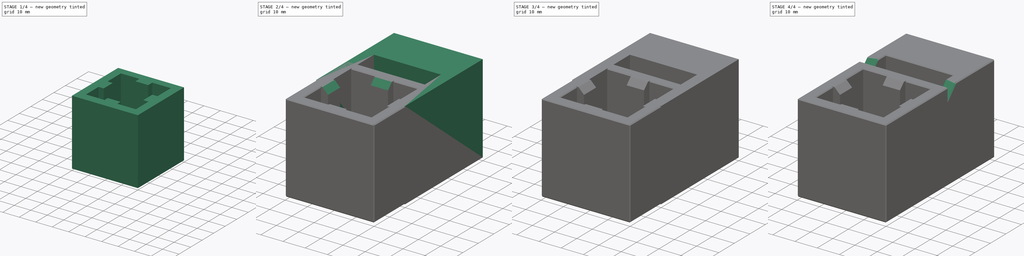
[diagram: build sequence overview — one tinted view per stage of 4, left to right]
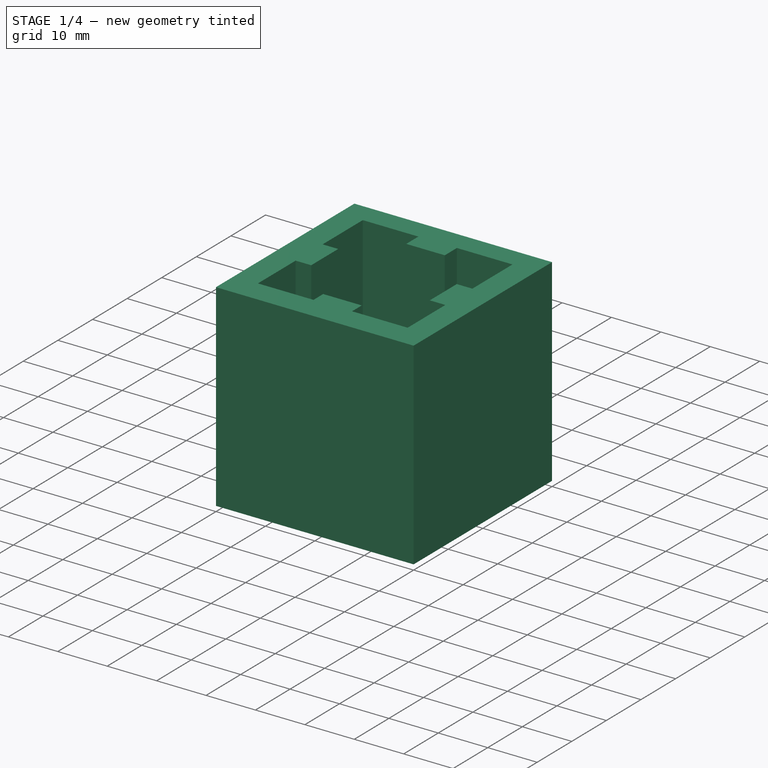
[diagram: stage 1 of 4 — iso view after this stage's code; geometry added in this stage tinted green]
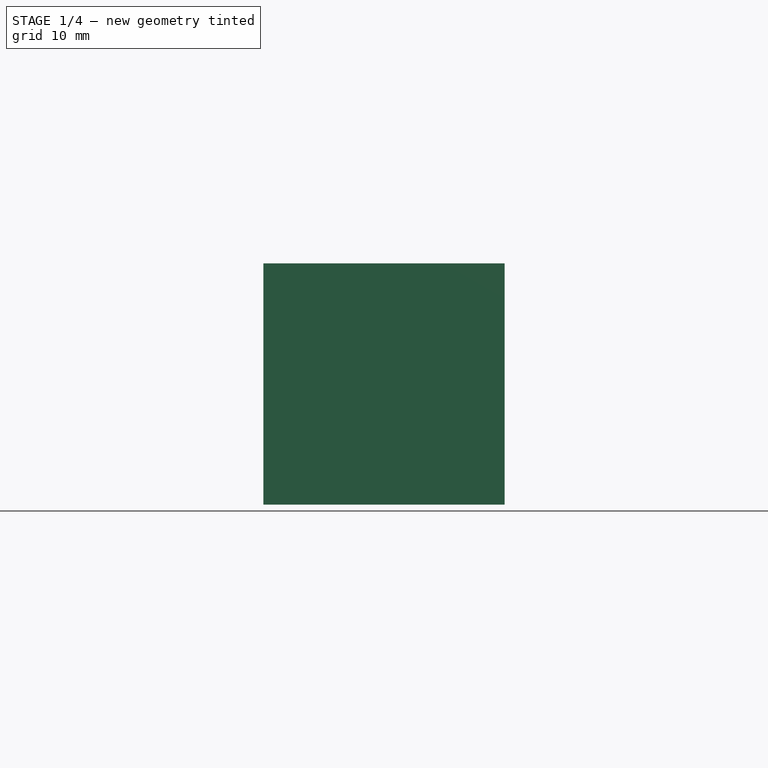
[diagram: stage 1 of 4 — front view after this stage's code; geometry added in this stage tinted green]
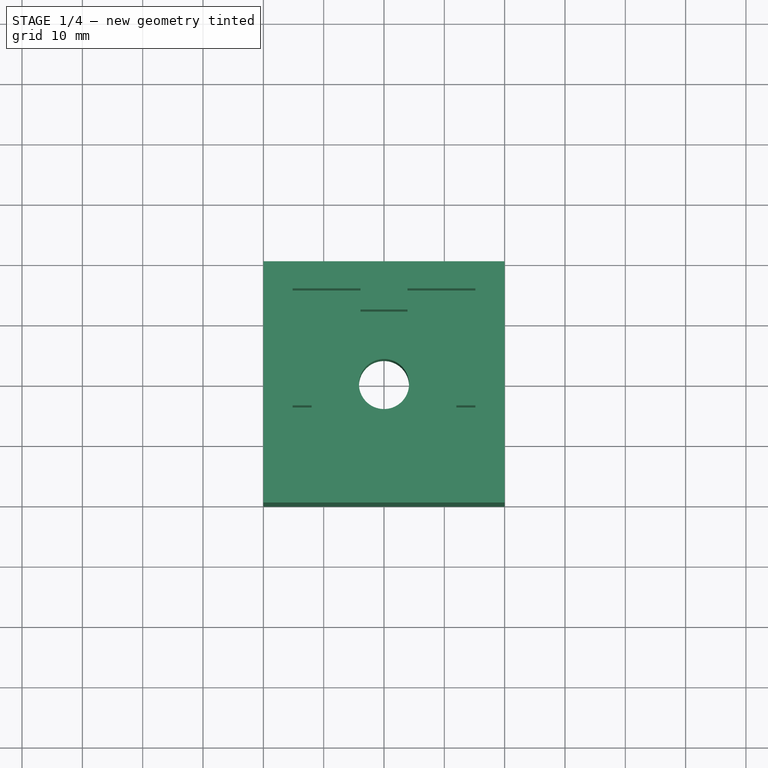
[diagram: stage 1 of 4 — top view after this stage's code; geometry added in this stage tinted green]
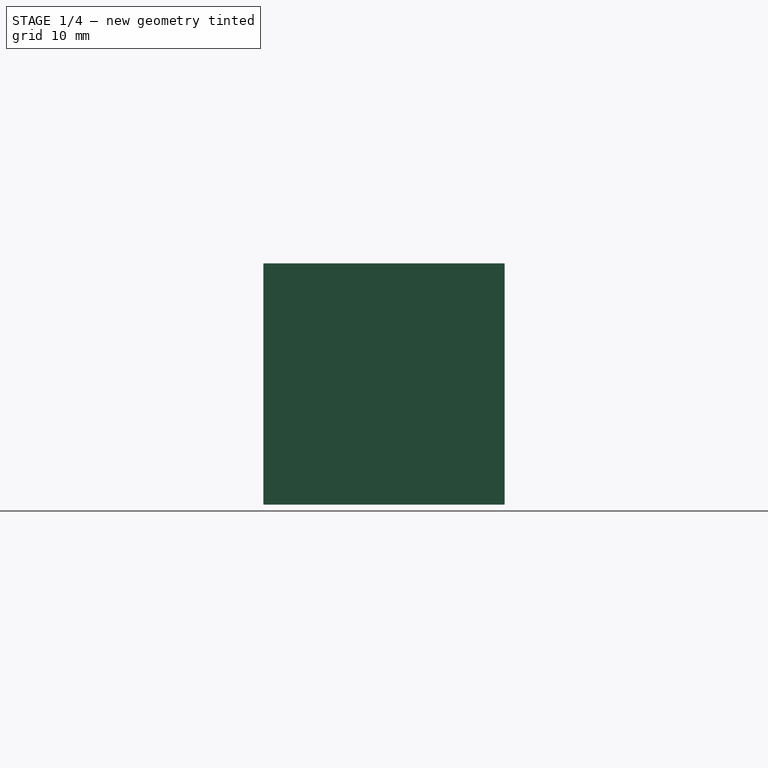
[diagram: stage 1 of 4 — right view after this stage's code; geometry added in this stage tinted green]
FCSTD DOCUMENT  (FreeCAD 0.19R24291 (Git))
Label: drilling-jig
License: Other
LicenseURL: GPL3
objects: Sketcher::SketchObject×8, PartDesign::Pocket×5, PartDesign::Chamfer×4, PartDesign::Pad×3, PartDesign::Body×2
note: 34 computed .brp shape members not serialized (recipe doc carries the construction recipe); baked Part::Feature solids carry a one-line shape summary decoded from their .brp

FEATURE [PartDesign::Body] Body
  Group = -> [Sketch,Pad,Sketch001,Pocket,Sketch002,Pocket001,Sketch003,Pocket002,Chamfer,Chamfer001,Sketch004,Pocket003]
  Origin = -> Origin
  Tip = -> Pocket003
FEATURE [Sketcher::SketchObject] Sketch005
  FullyConstrained = true
  MapMode = 5
  Support = -> [XY_Plane001]
  sketch-geometry (5):
    g0: LineSegment StartX=-20 StartY=20 StartZ=0 EndX=20 EndY=20 EndZ=0
    g1: LineSegment StartX=20 StartY=20 StartZ=0 EndX=20 EndY=-20 EndZ=0
    g2: LineSegment StartX=20 StartY=-20 StartZ=0 EndX=-20 EndY=-20 EndZ=0
    g3: LineSegment StartX=-20 StartY=-20 StartZ=0 EndX=-20 EndY=20 EndZ=0
    g4: Circle CenterX=0 CenterY=0 CenterZ=0 NormalX=0 NormalY=0 NormalZ=1 AngleXU=0 Radius=4.15
  constraints (14):
    c: Coincident(g0,g1)
    c: Coincident(g1,g2)
    c: Coincident(g2,g3)
    c: Coincident(g3,g0)
    c: Horizontal(g0)
    c: Horizontal(g2)
    c: Vertical(g1)
    c: Vertical(g3)
    c: DistanceX(g0,g0) = 40
    c: DistanceY(g1,g1) = 40
    c: DistanceY(g-1,g0) = 20
    c: DistanceX(g0,g-1) = 20
    c: Coincident(g4,g-1)
    c: Radius(g4) = 4.15
FEATURE [PartDesign::Pad] Pad001
  Direction = (1,1,1)
  Length = 40
  Length2 = 100
  Profile = -> Sketch005
  Type = 0
FEATURE [Sketcher::SketchObject] Sketch006
  FullyConstrained = true
  MapMode = 5
  Placement = pos=(0,0,40) rot=(0,0,1;0rad)
  Support = -> [Pad001]
  sketch-geometry (4):
    g0: LineSegment StartX=-15.15 StartY=15.5 StartZ=0 EndX=15.15 EndY=15.5 EndZ=0
    g1: LineSegment StartX=15.15 StartY=15.5 StartZ=0 EndX=15.15 EndY=-14.8 EndZ=0
    g2: LineSegment StartX=15.15 StartY=-14.8 StartZ=0 EndX=-15.15 EndY=-14.8 EndZ=0
    g3: LineSegment StartX=-15.15 StartY=-14.8 StartZ=0 EndX=-15.15 EndY=15.5 EndZ=0
  constraints (12):
    c: Coincident(g0,g1)
    c: Coincident(g1,g2)
    c: Coincident(g2,g3)
    c: Coincident(g3,g0)
    c: Horizontal(g0)
    c: Horizontal(g2)
    c: Vertical(g1)
    c: Vertical(g3)
    c: DistanceX(g0,g0) = 30.3
    c: DistanceX(g0,g-1) = 15.15
    c: DistanceY(g1,g1) = 30.3
    c: DistanceY(g-1,g0) = 15.5
FEATURE [PartDesign::Pocket] Pocket004
  BaseFeature = -> Pad001
  Length = 20
  Length2 = 100
  Profile = -> Sketch006
  Type = 0
FEATURE [Sketcher::SketchObject] Sketch007
  FullyConstrained = true
  MapMode = 5
  Placement = pos=(0,0,40) rot=(0,0,1;0rad)
  Support = -> [Pocket004]
  sketch-geometry (16):
    g0: LineSegment StartX=-3.9 StartY=16 StartZ=0 EndX=3.9 EndY=16 EndZ=0
    g1: LineSegment StartX=3.9 StartY=16 StartZ=0 EndX=3.9 EndY=12 EndZ=0
    g2: LineSegment StartX=3.9 StartY=12 StartZ=0 EndX=-3.9 EndY=12 EndZ=0
    g3: LineSegment StartX=-3.9 StartY=12 StartZ=0 EndX=-3.9 EndY=16 EndZ=0
    g4: LineSegment StartX=-3.9 StartY=-12 StartZ=0 EndX=3.9 EndY=-12 EndZ=0
    g5: LineSegment StartX=3.9 StartY=-12 StartZ=0 EndX=3.9 EndY=-16 EndZ=0
    g6: LineSegment StartX=3.9 StartY=-16 StartZ=0 EndX=-3.9 EndY=-16 EndZ=0
    g7: LineSegment StartX=-3.9 StartY=-16 StartZ=0 EndX=-3.9 EndY=-12 EndZ=0
    g8: LineSegment StartX=-16 StartY=3.9 StartZ=0 EndX=-12 EndY=3.9 EndZ=0
    g9: LineSegment StartX=-12 StartY=3.9 StartZ=0 EndX=-12 EndY=-3.9 EndZ=0
    g10: LineSegment StartX=-12 StartY=-3.9 StartZ=0 EndX=-16 EndY=-3.9 EndZ=0
    g11: LineSegment StartX=-16 StartY=-3.9 StartZ=0 EndX=-16 EndY=3.9 EndZ=0
    g12: LineSegment StartX=12 StartY=3.9 StartZ=0 EndX=16 EndY=3.9 EndZ=0
    g13: LineSegment StartX=16 StartY=3.9 StartZ=0 EndX=16 EndY=-3.9 EndZ=0
    g14: LineSegment StartX=16 StartY=-3.9 StartZ=0 EndX=12 EndY=-3.9 EndZ=0
    g15: LineSegment StartX=12 StartY=-3.9 StartZ=0 EndX=12 EndY=3.9 EndZ=0
  constraints (48):
    c: Coincident(g0,g1)
    c: Coincident(g1,g2)
    c: Coincident(g2,g3)
    c: Coincident(g3,g0)
    c: Horizontal(g0)
    c: Horizontal(g2)
    c: Vertical(g1)
    c: Vertical(g3)
    c: Coincident(g4,g5)
    c: Coincident(g5,g6)
    c: Coincident(g6,g7)
    c: Coincident(g7,g4)
    c: Horizontal(g4)
    c: Horizontal(g6)
    c: Vertical(g5)
    c: Vertical(g7)
    c: Coincident(g8,g9)
    c: Coincident(g9,g10)
    c: Coincident(g10,g11)
    c: Coincident(g11,g8)
    c: Horizontal(g8)
    c: Horizontal(g10)
    c: Vertical(g9)
    c: Vertical(g11)
    c: Coincident(g12,g13)
    c: Coincident(g13,g14)
    c: Coincident(g14,g15)
    c: Coincident(g15,g12)
    c: Horizontal(g12)
    c: Horizontal(g14)
    c: Vertical(g13)
    c: Vertical(g15)
    c: DistanceY(g15,g15) = 7.8
    c: DistanceY(g9,g9) = 7.8
    c: DistanceX(g2,g2) = 7.8
    c: DistanceX(g4,g4) = 7.8
    c: DistanceX(g4,g-1) = 3.9
    c: DistanceX(g-1,g1) = 3.9
    c: DistanceY(g9,g-1) = 3.9
    c: DistanceY(g-1,g12) = 3.9
    c: DistanceY(g-1,g2) = 12
    c: DistanceY(g4,g-1) = 12
    c: DistanceX(g-1,g12) = 12
    c: DistanceX(g8,g-1) = 12
    c: DistanceX(g10,g10) = 4
    c: DistanceX(g12,g12) = 4
    c: DistanceY(g1,g1) = 4
    c: DistanceY(g5,g5) = 4
FEATURE [PartDesign::Pad] Pad002
  BaseFeature = -> Pocket004
  Direction = (1,1,1)
  Length = 20
  Length2 = 100
  Profile = -> Sketch007
  Reversed = true
  Type = 0
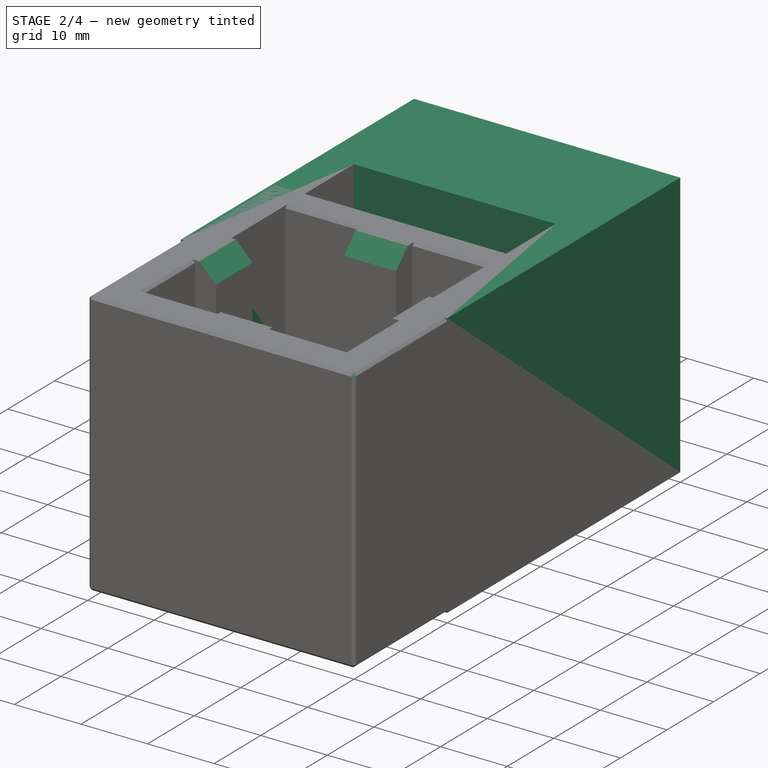
[diagram: stage 2 of 4 — iso view after this stage's code; geometry added in this stage tinted green]
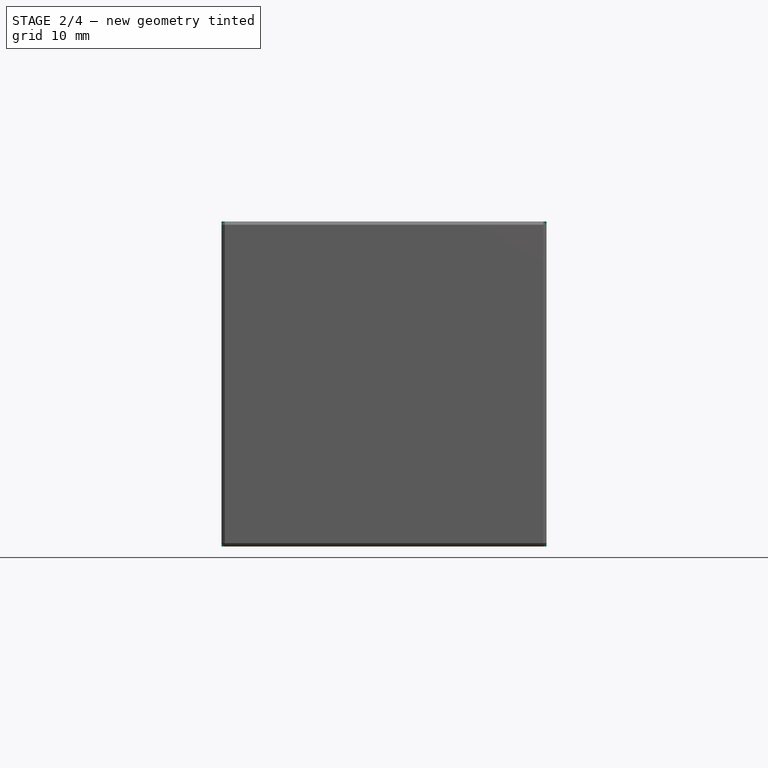
[diagram: stage 2 of 4 — front view after this stage's code; geometry added in this stage tinted green]
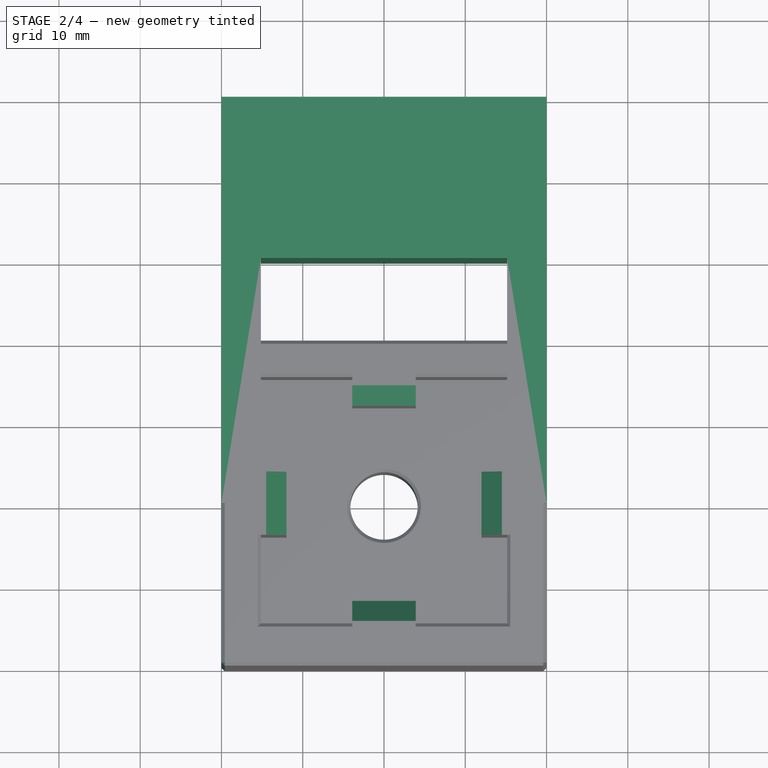
[diagram: stage 2 of 4 — top view after this stage's code; geometry added in this stage tinted green]
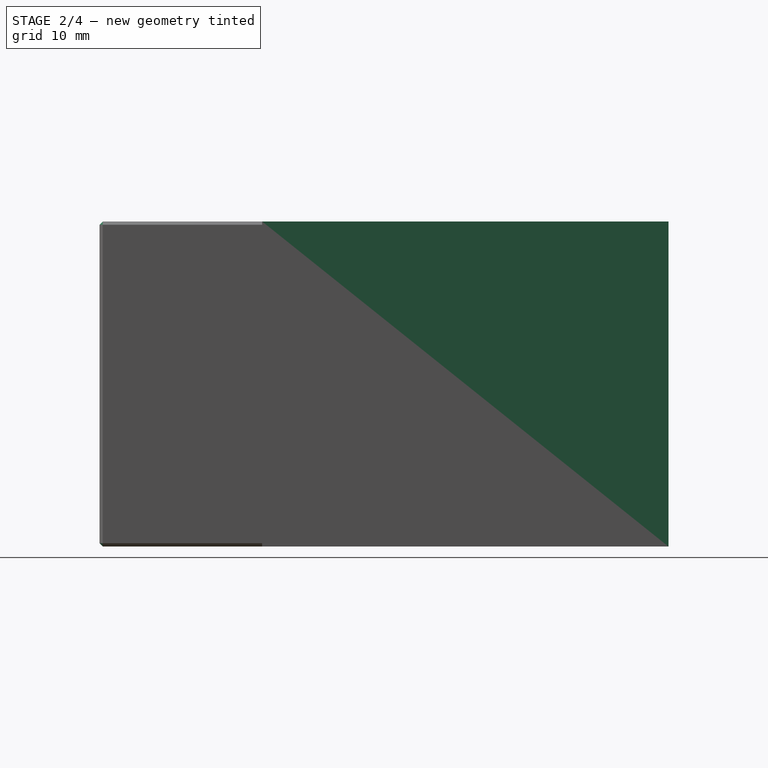
[diagram: stage 2 of 4 — right view after this stage's code; geometry added in this stage tinted green]
FEATURE [Sketcher::SketchObject] Sketch
  FullyConstrained = true
  MapMode = 5
  Support = -> [XY_Plane]
  sketch-geometry (8):
    g0: LineSegment StartX=-15.15 StartY=0 StartZ=0 EndX=-15.15 EndY=30.15 EndZ=0
    g1: LineSegment StartX=-15.15 StartY=30.15 StartZ=0 EndX=15.15 EndY=30.15 EndZ=0
    g2: LineSegment StartX=15.15 StartY=30.15 StartZ=0 EndX=15.15 EndY=0 EndZ=0
    g3: LineSegment StartX=15.15 StartY=0 StartZ=0 EndX=20 EndY=0 EndZ=0
    g4: LineSegment StartX=20 StartY=0 StartZ=0 EndX=20 EndY=50 EndZ=0
    g5: LineSegment StartX=20 StartY=50 StartZ=0 EndX=-20 EndY=50 EndZ=0
    g6: LineSegment StartX=-20 StartY=50 StartZ=0 EndX=-20 EndY=0 EndZ=0
    g7: LineSegment StartX=-20 StartY=0 StartZ=0 EndX=-15.15 EndY=0 EndZ=0
  constraints (24):
    c: PointOnObject(g0,g-1)
    c: Vertical(g0)
    c: Coincident(g0,g1)
    c: Horizontal(g1)
    c: Coincident(g1,g2)
    c: PointOnObject(g2,g-1)
    c: Vertical(g2)
    c: Coincident(g2,g3)
    c: PointOnObject(g3,g-1)
    c: Coincident(g3,g4)
    c: Vertical(g4)
    c: Coincident(g4,g5)
    c: Horizontal(g5)
    c: Coincident(g5,g6)
    c: PointOnObject(g6,g-1)
    c: Vertical(g6)
    c: Coincident(g6,g7)
    c: Coincident(g7,g0)
    c: DistanceX(g1,g1) = 30.3
    c: DistanceX(g5,g5) = 40
    c: DistanceX(g0,g-1) = 15.15
    c: DistanceX(g5,g-1) = 20
    c: DistanceY(g4,g4) = 50
    c: DistanceY(g2,g2) = 30.15
FEATURE [PartDesign::Pad] Pad
  Direction = (1,1,1)
  Length = 40
  Length2 = 100
  Profile = -> Sketch
  Type = 0
FEATURE [PartDesign::Chamfer] Chamfer002
  Angle = 45
  Base = -> Pad002 [Edge85,Edge89,Edge74,Edge79]
  BaseFeature = -> Pad002
  ChamferType = 0
  FlipDirection = false
  Size = 2.5
  Size2 = 1
  SupportTransform = false
FEATURE [PartDesign::Chamfer] Chamfer003
  Angle = 45
  Base = -> Chamfer002 [Face9,Face30,Face29,Face27,Face28,Face40,Edge33]
  BaseFeature = -> Chamfer002
  ChamferType = 0
  FlipDirection = false
  Size = 0.4
  Size2 = 1
  SupportTransform = false
FEATURE [PartDesign::Body] Body001
  Group = -> [Sketch005,Pad001,Sketch006,Pocket004,Sketch007,Pad002,Chamfer002,Chamfer003]
  Origin = -> Origin001
  Tip = -> Chamfer003
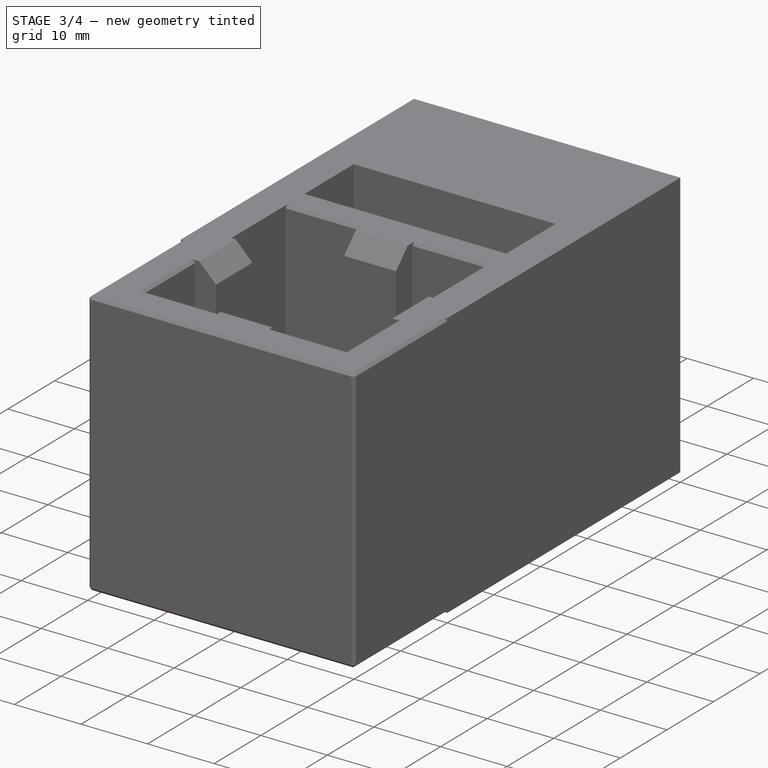
[diagram: stage 3 of 4 — iso view after this stage's code; geometry added in this stage tinted green]
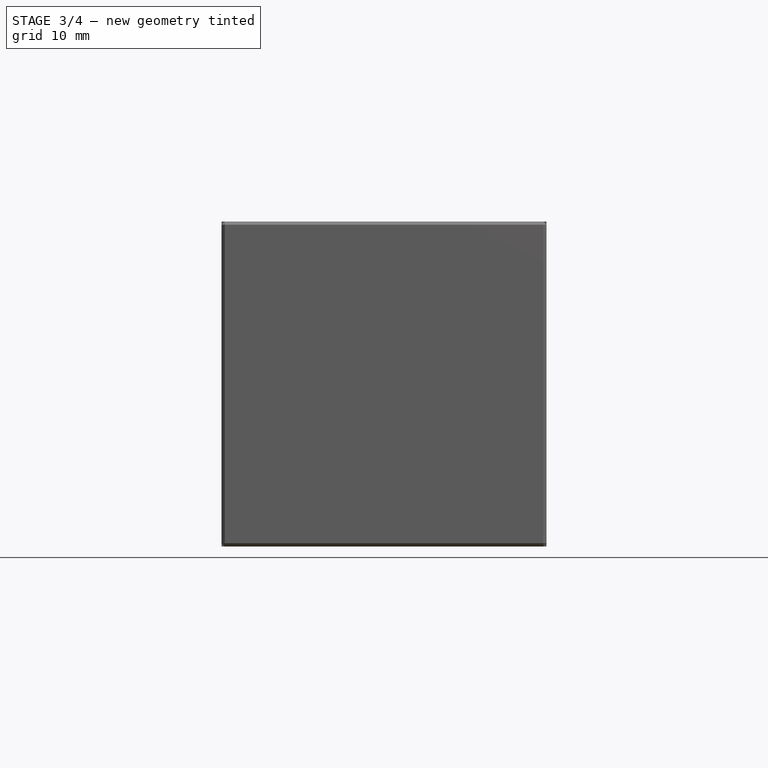
[diagram: stage 3 of 4 — front view after this stage's code; geometry added in this stage tinted green]
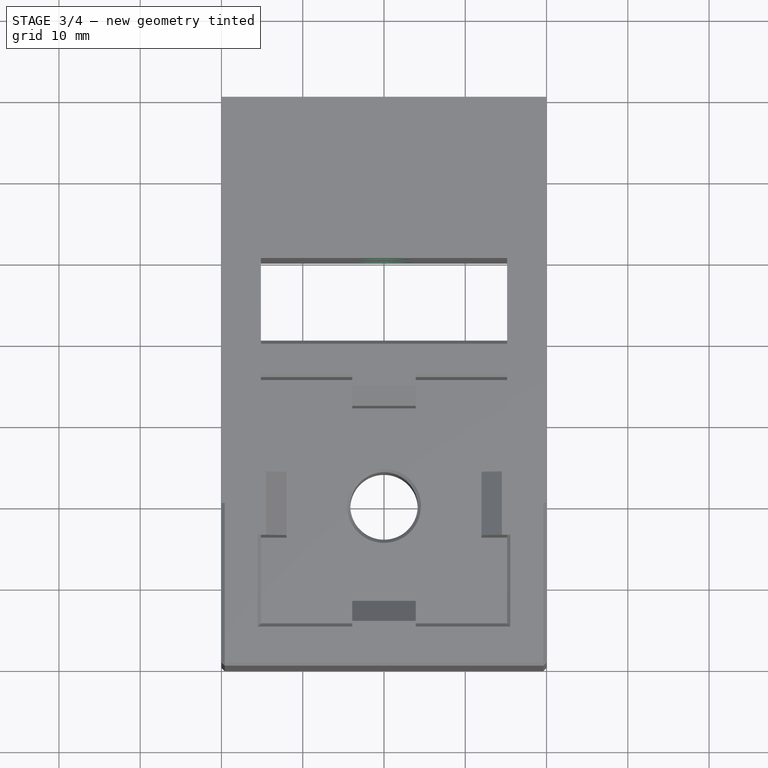
[diagram: stage 3 of 4 — top view after this stage's code; geometry added in this stage tinted green]
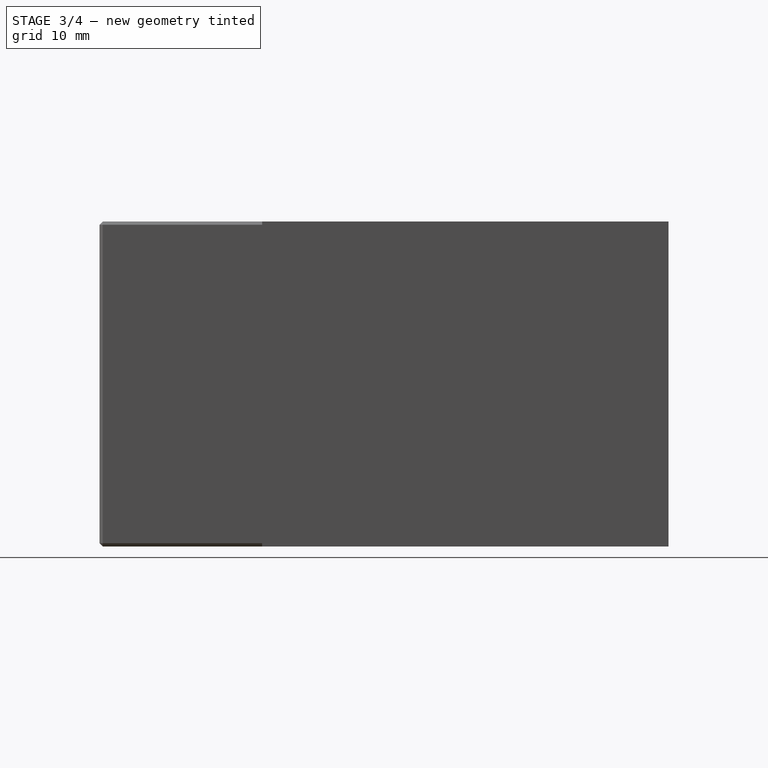
[diagram: stage 3 of 4 — right view after this stage's code; geometry added in this stage tinted green]
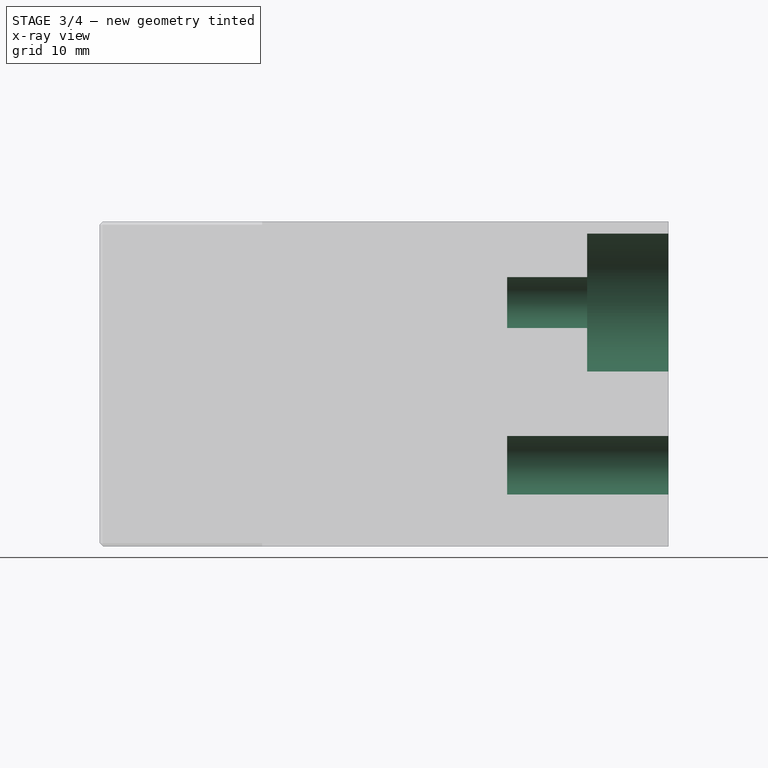
[diagram: stage 3 of 4 — x-ray composite at the right view; earlier geometry ghosted, this stage's added geometry solid]
FEATURE [Sketcher::SketchObject] Sketch001
  FullyConstrained = true
  MapMode = 5
  Placement = pos=(0,50,0) rot=(0,0.707107,0.707107;3.14159rad)
  Support = -> [Pad]
  sketch-geometry (2):
    g0: Circle CenterX=0 CenterY=10 CenterZ=0 NormalX=0 NormalY=0 NormalZ=1 AngleXU=0 Radius=3.6
    g1: Circle CenterX=0 CenterY=30 CenterZ=0 NormalX=0 NormalY=0 NormalZ=1 AngleXU=0 Radius=3.15
  constraints (6):
    c: PointOnObject(g0,g-2)
    c: Radius(g0) = 3.6
    c: DistanceY(g-1,g0) = 10
    c: PointOnObject(g1,g-2)
    c: Radius(g1) = 3.15
    c: DistanceY(g-1,g1) = 30
FEATURE [PartDesign::Pocket] Pocket
  BaseFeature = -> Pad
  Length = 5
  Length2 = 100
  Profile = -> Sketch001
  Type = 1
FEATURE [Sketcher::SketchObject] Sketch002
  FullyConstrained = true
  MapMode = 5
  Placement = pos=(0,50,0) rot=(0,0.707107,0.707107;3.14159rad)
  Support = -> [Pocket]
  sketch-geometry (1):
    g0: Circle CenterX=0 CenterY=30 CenterZ=0 NormalX=0 NormalY=0 NormalZ=1 AngleXU=0 Radius=8.5
  constraints (3):
    c: PointOnObject(g0,g-2)
    c: DistanceY(g-1,g0) = 30
    c: Radius(g0) = 8.5
FEATURE [PartDesign::Pocket] Pocket001
  BaseFeature = -> Pocket
  Length = 10
  Length2 = 100
  Profile = -> Sketch002
  Type = 0
FEATURE [Sketcher::SketchObject] Sketch003
  FullyConstrained = true
  MapMode = 5
  Placement = pos=(-20,0,0) rot=(0.57735,-0.57735,-0.57735;2.0944rad)
  Support = -> [Pocket001]
  sketch-geometry (1):
    g0: Circle CenterX=-15 CenterY=10 CenterZ=0 NormalX=0 NormalY=0 NormalZ=1 AngleXU=0 Radius=3.15
  constraints (3):
    c: DistanceX(g0,g-1) = 15
    c: DistanceY(g-1,g0) = 10
    c: Radius(g0) = 3.15
FEATURE [PartDesign::Pocket] Pocket002
  BaseFeature = -> Pocket001
  Length = 5
  Length2 = 100
  Profile = -> Sketch003
  Type = 1
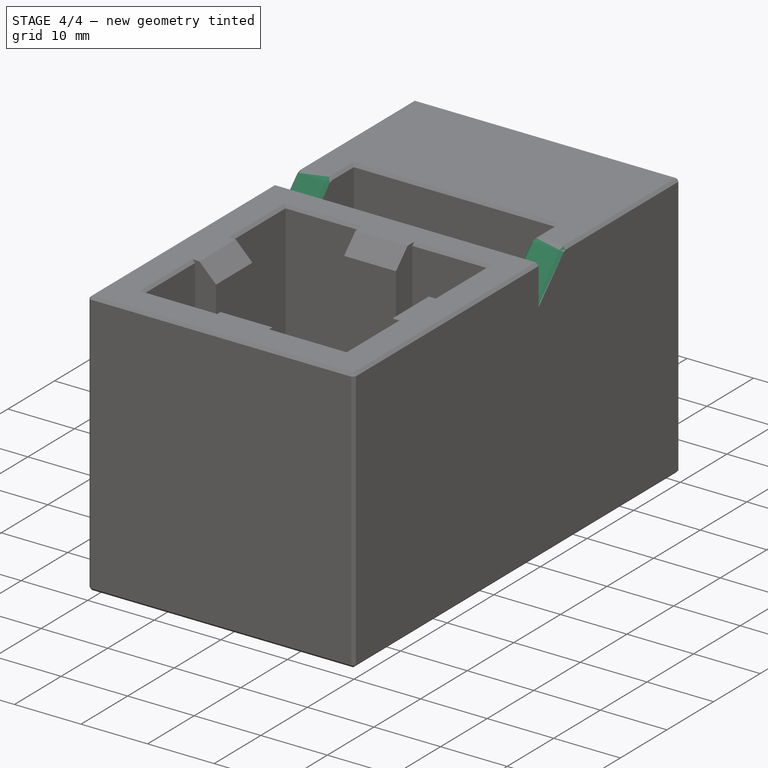
[diagram: stage 4 of 4 — iso view after this stage's code; geometry added in this stage tinted green]
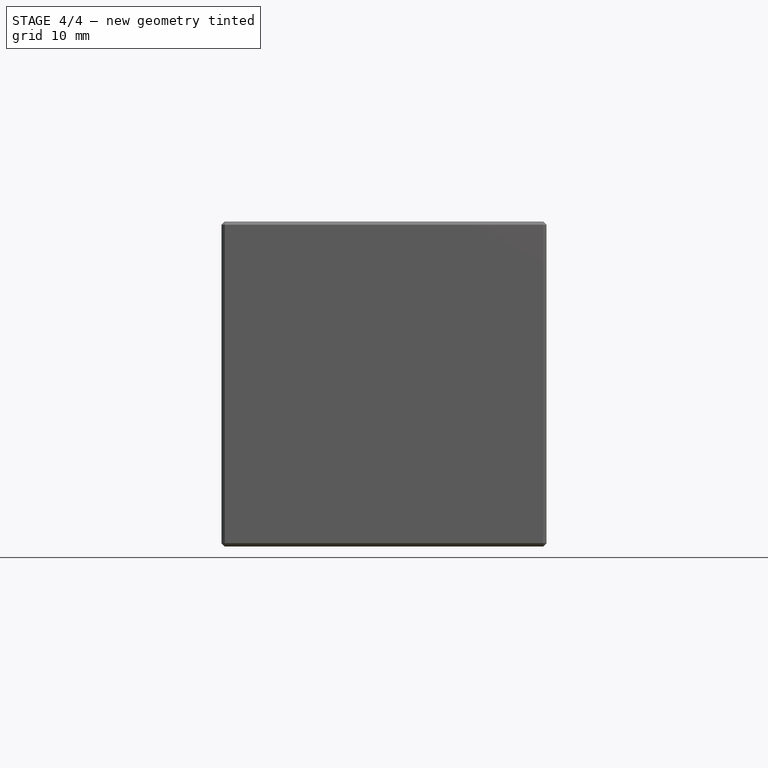
[diagram: stage 4 of 4 — front view after this stage's code; geometry added in this stage tinted green]
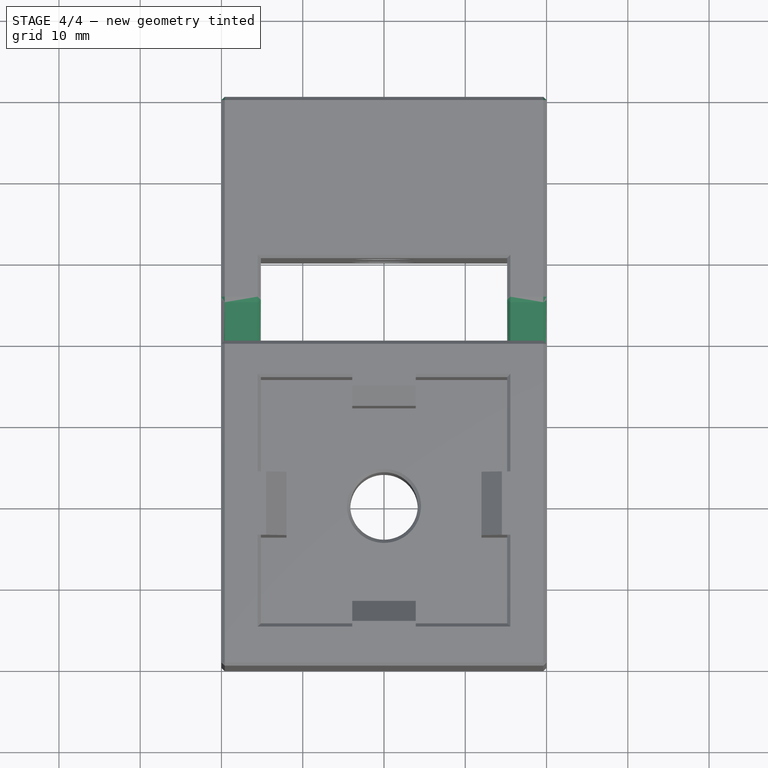
[diagram: stage 4 of 4 — top view after this stage's code; geometry added in this stage tinted green]
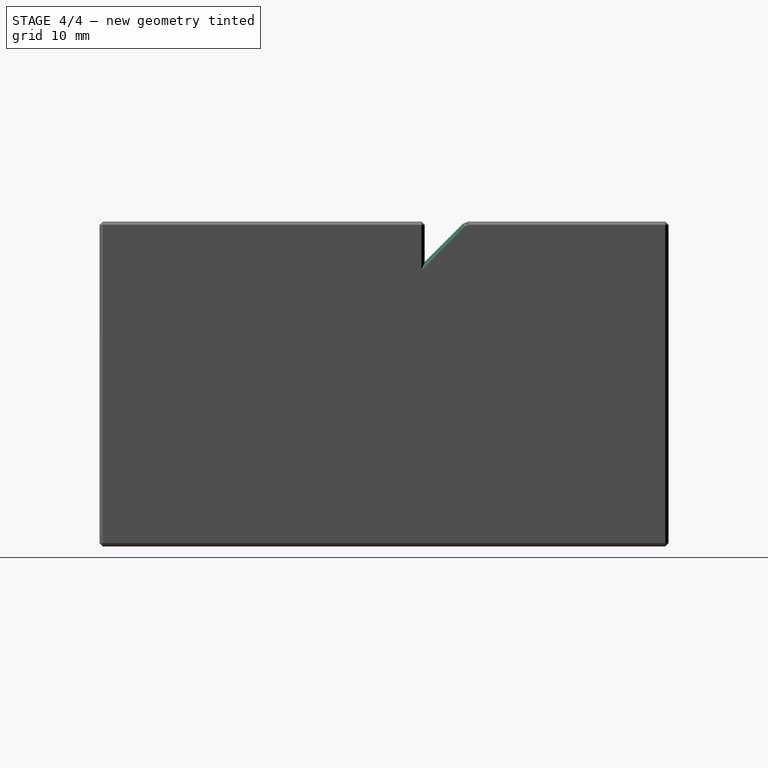
[diagram: stage 4 of 4 — right view after this stage's code; geometry added in this stage tinted green]
FEATURE [PartDesign::Chamfer] Chamfer
  Angle = 45
  Base = -> Pocket002 [Edge8,Edge17]
  BaseFeature = -> Pocket002
  ChamferType = 0
  FlipDirection = false
  Size = 25
  Size2 = 1
  SupportTransform = false
FEATURE [PartDesign::Chamfer] Chamfer001
  Angle = 45
  Base = -> Chamfer [Face12,Face8,Face11,Face4,Face5,Face3,Face2,Face10,Face13,Edge25,Edge26,Edge6,Edge32]
  BaseFeature = -> Chamfer
  ChamferType = 0
  FlipDirection = false
  Size = 0.4
  Size2 = 1
  SupportTransform = false
FEATURE [Sketcher::SketchObject] Sketch004
  FullyConstrained = false
  MapMode = 5
  Placement = pos=(0,50,0) rot=(0,0.707107,0.707107;3.14159rad)
  Support = -> [Chamfer001]
  sketch-geometry (6):
    g0: LineSegment StartX=8 StartY=10 StartZ=0 EndX=10 EndY=12 EndZ=0
    g1: LineSegment StartX=10 StartY=12 StartZ=0 EndX=10 EndY=8 EndZ=0
    g2: LineSegment StartX=10 StartY=8 StartZ=0 EndX=8 EndY=10 EndZ=0
    g3: LineSegment StartX=-8 StartY=10 StartZ=0 EndX=-10 EndY=12 EndZ=0
    g4: LineSegment StartX=-10 StartY=12 StartZ=0 EndX=-10 EndY=8 EndZ=0
    g5: LineSegment StartX=-10 StartY=8 StartZ=0 EndX=-8 EndY=10 EndZ=0
  constraints (8):
    c: Coincident(g0,g1)
    c: Vertical(g1)
    c: Coincident(g1,g2)
    c: Coincident(g2,g0)
    c: Coincident(g3,g4)
    c: Vertical(g4)
    c: Coincident(g4,g5)
    c: Coincident(g5,g3)
FEATURE [PartDesign::Pocket] Pocket003
  BaseFeature = -> Chamfer001
  Length = 0.5
  Length2 = 100
  Profile = -> Sketch004
  Type = 0
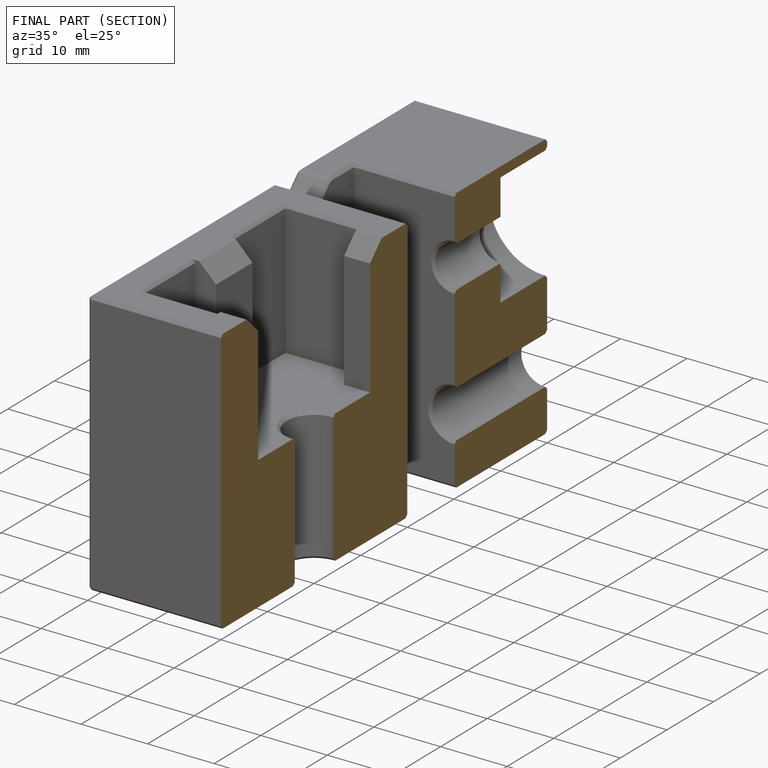
[diagram: finished part — half-section view (interior)]
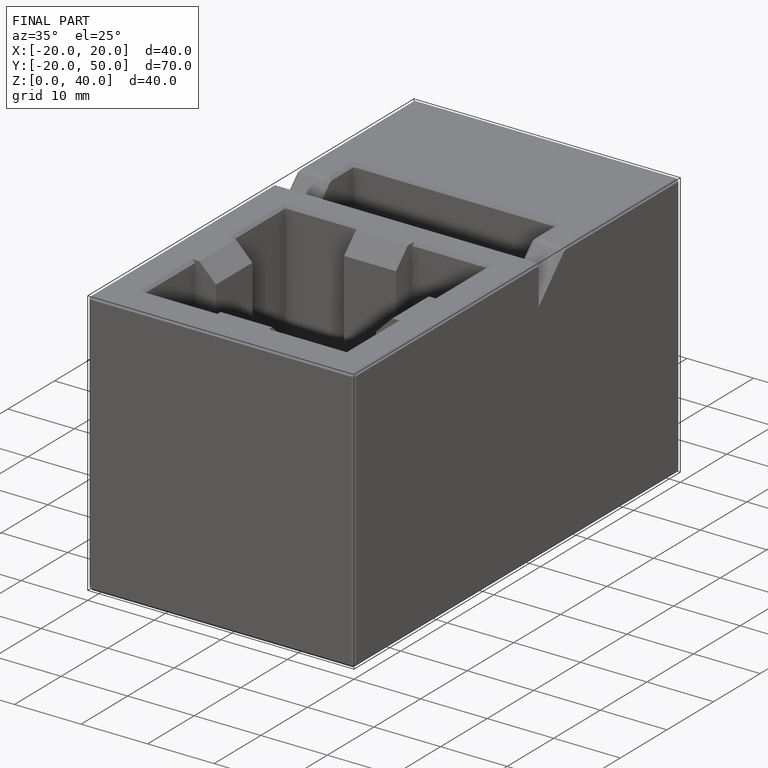
[diagram: finished part — iso view with bounding-box wireframe]
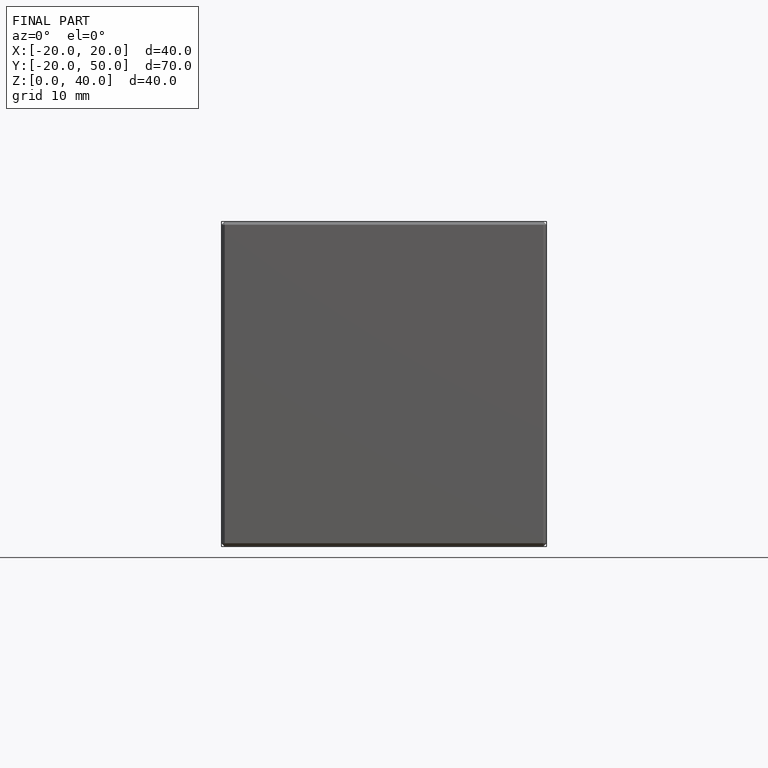
[diagram: finished part — front view with bounding-box wireframe]
